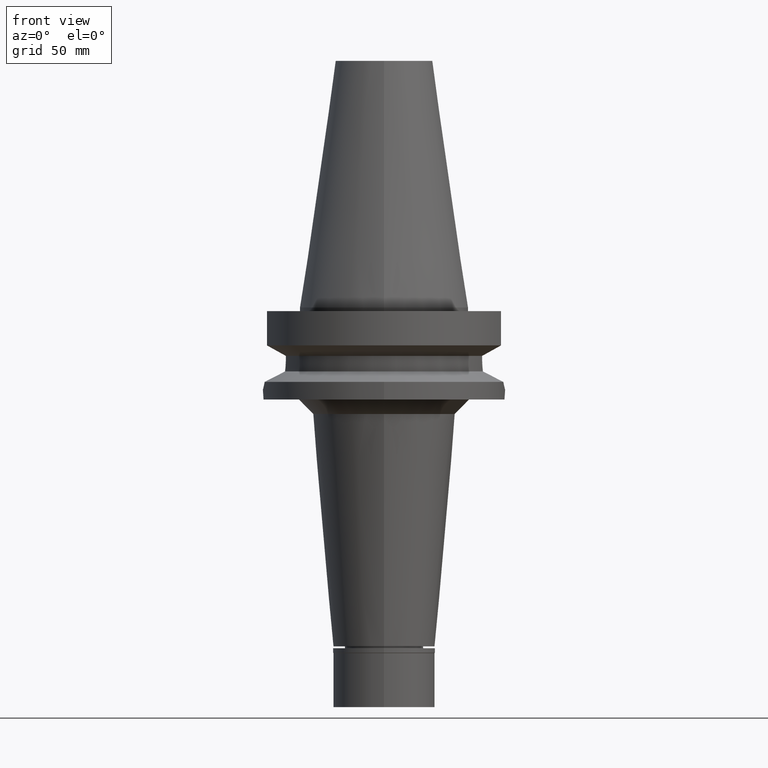
[diagram: clean part render]
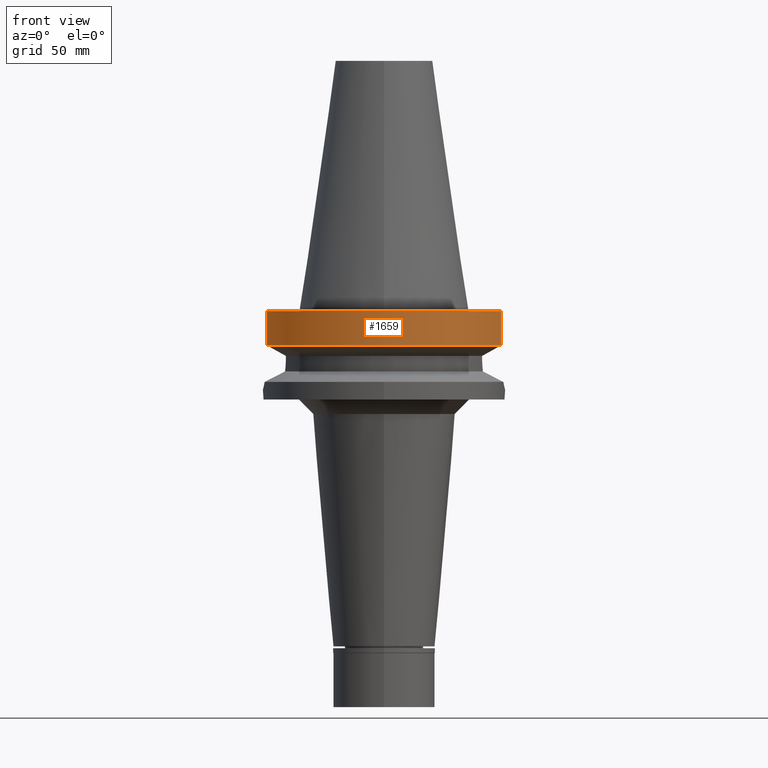
[diagram: same view with one face highlighted and labeled with its STEP entity id]
A machine part, front view. The second image highlights one B-rep face of the part: STEP entity #1659.
In plain terms, the highlighted cylindrical surface (partial cylindrical patch) has radius 50 mm, axis along (0, 0, -1).
Its self-contained STEP definition (entity closure, byte-faithful):
#21 = DIRECTION ( 'NONE',  ( -7.245256712558713783E-08, -2.724472421615890928E-07, -0.9999999999999603650 ) ) ;
#79 = CARTESIAN_POINT ( 'NONE',  ( -48.32057015392000210, -12.84999999999999964, -1.500000000000000000 ) ) ;
#94 = ORIENTED_EDGE ( 'NONE', *, *, #394, .T. ) ;
#281 = AXIS2_PLACEMENT_3D ( 'NONE', #1834, #359, #848 ) ;
#359 = DIRECTION ( 'NONE',  ( 0.0000000000000000000, 0.0000000000000000000, 1.000000000000000000 ) ) ;
#394 = EDGE_CURVE ( 'NONE', #2775, #2018, #1219, .T. ) ;
#497 = EDGE_CURVE ( 'NONE', #1057, #857, #1791, .T. ) ;
#589 = AXIS2_PLACEMENT_3D ( 'NONE', #1696, #2244, #2524 ) ;
#848 = DIRECTION ( 'NONE',  ( 0.0000000000000000000, -1.000000000000000000, 0.0000000000000000000 ) ) ;
#857 = VERTEX_POINT ( 'NONE', #2217 ) ;
#866 = LINE ( 'NONE', #2597, #2805 ) ;
#1057 = VERTEX_POINT ( 'NONE', #1910 ) ;
#1135 = DIRECTION ( 'NONE',  ( -7.242826062940713647E-08, 2.723558434545890236E-07, 0.9999999999999603650 ) ) ;
#1219 = CIRCLE ( 'NONE', #589, 50.00000000000000000 ) ;
#1284 = CARTESIAN_POINT ( 'NONE',  ( 0.0000000000000000000, 2.630112698188999834E-14, 114.7650000000000006 ) ) ;
#1419 = EDGE_CURVE ( 'NONE', #1057, #2018, #866, .T. ) ;
#1595 = CARTESIAN_POINT ( 'NONE',  ( 48.32057015392000210, -12.84999999999999964, -1.500000000000000000 ) ) ;
#1659 = ADVANCED_FACE ( 'NONE', ( #1976 ), #1802, .T. ) ;
#1696 = CARTESIAN_POINT ( 'NONE',  ( 0.0000000000000000000, 2.630112698188999834E-14, -1.500000000000000000 ) ) ;
#1734 = DIRECTION ( 'NONE',  ( 0.0000000000000000000, 0.0000000000000000000, -1.000000000000000000 ) ) ;
#1739 = ORIENTED_EDGE ( 'NONE', *, *, #497, .T. ) ;
#1791 = CIRCLE ( 'NONE', #281, 50.00000000000000000 ) ;
#1802 = CYLINDRICAL_SURFACE ( 'NONE', #2559, 50.00000000000000000 ) ;
#1834 = CARTESIAN_POINT ( 'NONE',  ( 0.0000000000000000000, 1.006319759053999930E-14, -15.66269223573000069 ) ) ;
#1910 = CARTESIAN_POINT ( 'NONE',  ( -48.32056912814000071, -12.85000385727999905, -15.66265768250999990 ) ) ;
#1976 = FACE_OUTER_BOUND ( 'NONE', #2726, .T. ) ;
#2018 = VERTEX_POINT ( 'NONE', #79 ) ;
#2031 = CARTESIAN_POINT ( 'NONE',  ( 48.32057015392000210, -12.84999999999999964, -1.500000000000000000 ) ) ;
#2207 = ORIENTED_EDGE ( 'NONE', *, *, #2574, .F. ) ;
#2217 = CARTESIAN_POINT ( 'NONE',  ( 48.32057015392000210, -12.84999999999999964, -15.66269223573000069 ) ) ;
#2244 = DIRECTION ( 'NONE',  ( 0.0000000000000000000, 0.0000000000000000000, -1.000000000000000000 ) ) ;
#2259 = DIRECTION ( 'NONE',  ( 0.0000000000000000000, -1.000000000000000000, 0.0000000000000000000 ) ) ;
#2524 = DIRECTION ( 'NONE',  ( 0.0000000000000000000, -1.000000000000000000, 0.0000000000000000000 ) ) ;
#2559 = AXIS2_PLACEMENT_3D ( 'NONE', #1284, #1734, #2259 ) ;
#2574 = EDGE_CURVE ( 'NONE', #2775, #857, #3006, .T. ) ;
#2597 = CARTESIAN_POINT ( 'NONE',  ( -48.32056912814000071, -12.85000385727999905, -15.66265768250999990 ) ) ;
#2669 = ORIENTED_EDGE ( 'NONE', *, *, #1419, .F. ) ;
#2726 = EDGE_LOOP ( 'NONE', ( #2669, #1739, #2207, #94 ) ) ;
#2775 = VERTEX_POINT ( 'NONE', #1595 ) ;
#2805 = VECTOR ( 'NONE', #1135, 1000.000000000000114 ) ;
#2867 = VECTOR ( 'NONE', #21, 999.9999999999998863 ) ;
#3006 = LINE ( 'NONE', #2031, #2867 ) ;